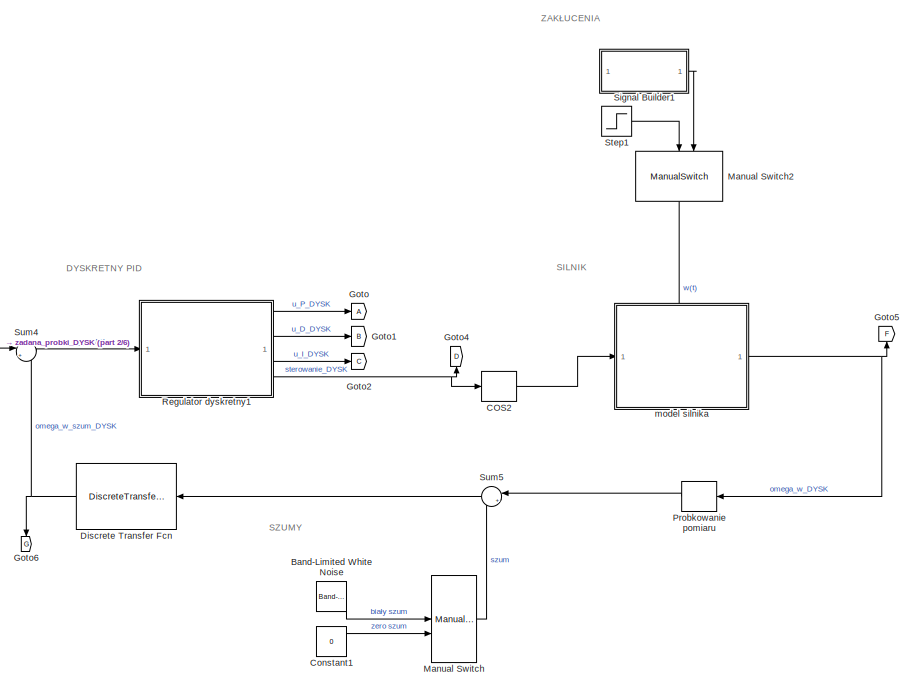
[diagram: root canvas - part 1/6, top center region]
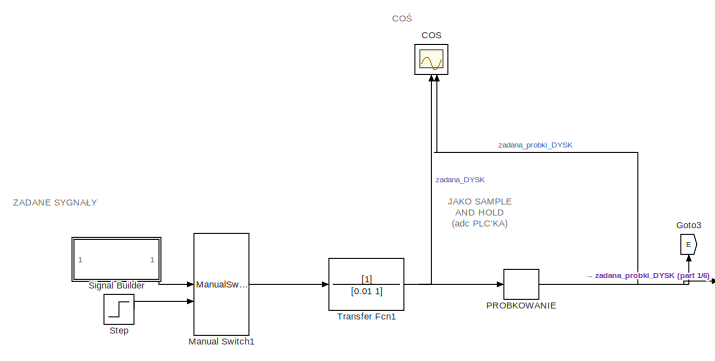
[diagram: root canvas - part 2/6, top left region]
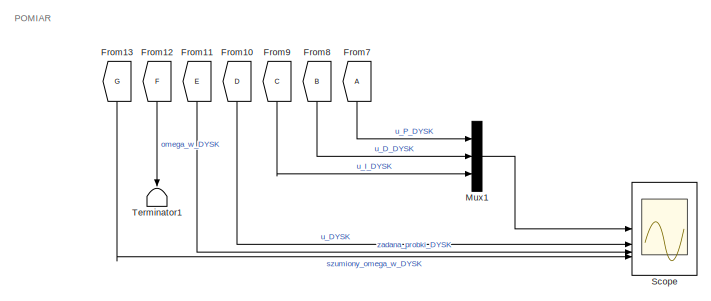
[diagram: root canvas - part 3/6, middle right region]
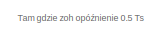
[diagram: root canvas - part 4/6, middle left region]
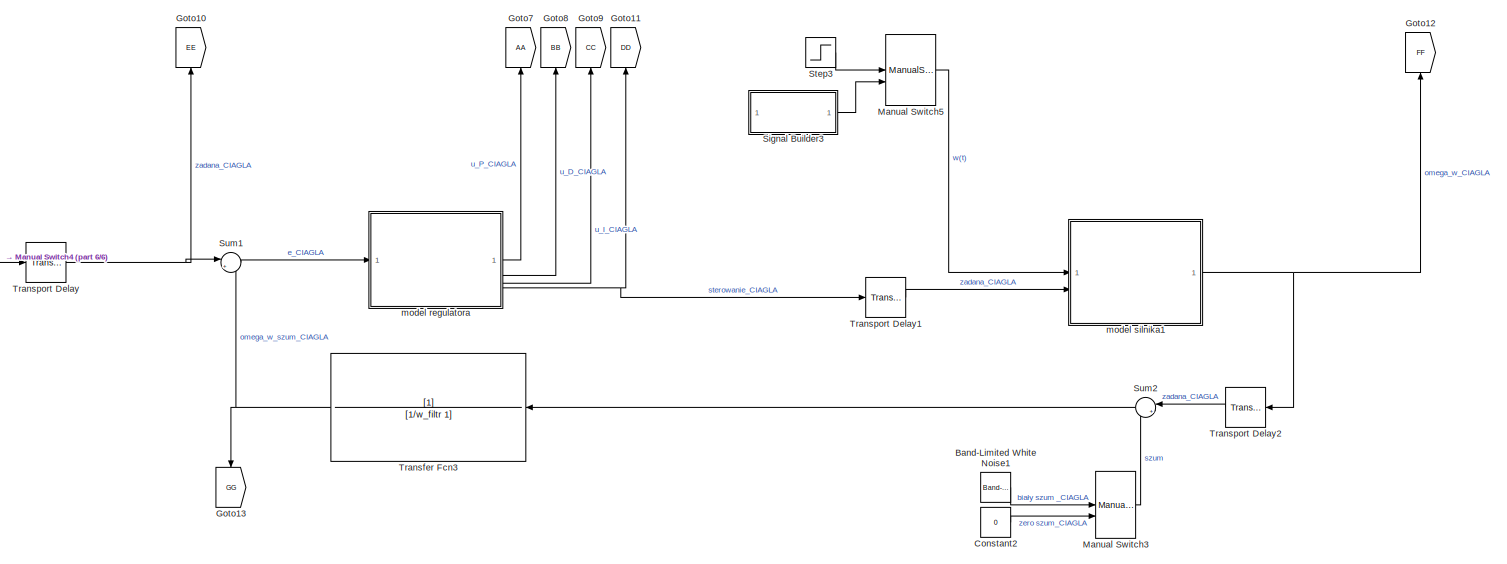
[diagram: root canvas - part 5/6, bottom center region]
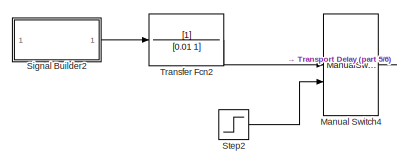
[diagram: root canvas - part 6/6, bottom left region]
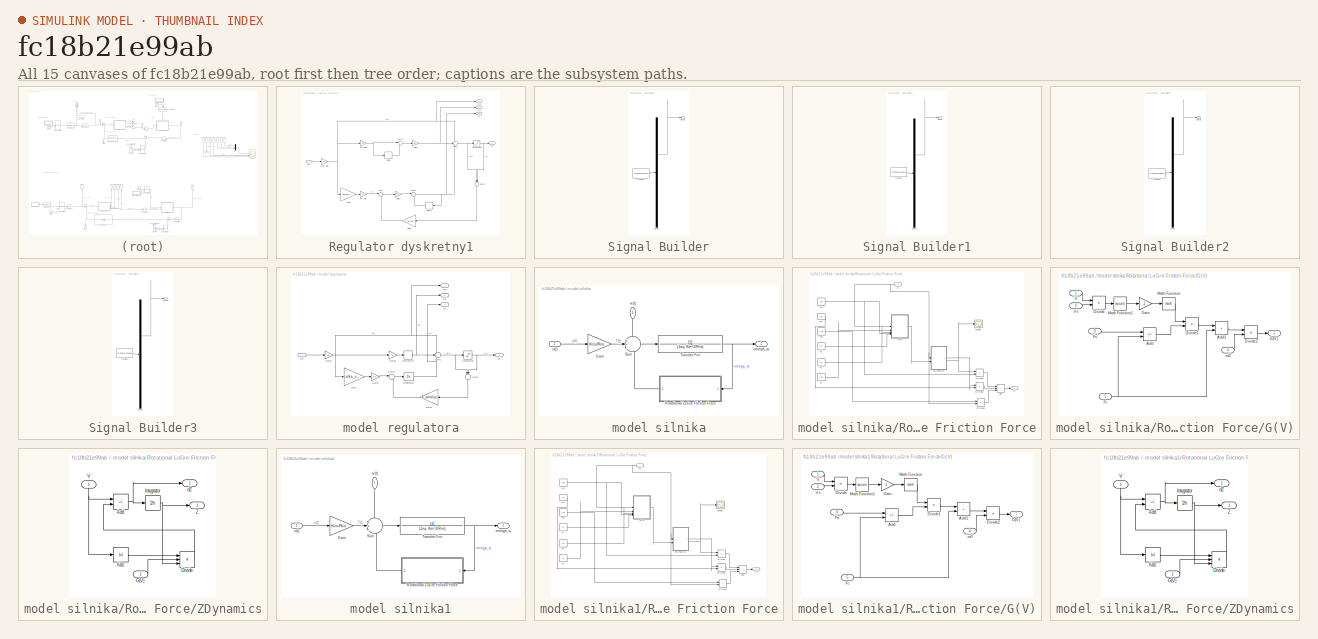
[diagram: thumbnail index - all 15 canvases of the model, root first then tree order]
MODEL slx_fc18b21e99ab
KIND model
CONFIG AbsTol = auto
CONFIG EnableMultiTasking = off
CONFIG FixedStep = auto
CONFIG MaxStep = auto
CONFIG MinStep = auto
CONFIG RelTol = 1e-3
CONFIG SampleTimeConstraint = Unconstrained
CONFIG SolverName = ode45
CONFIG StartTime = 0.0
CONFIG StopTime = 5
BLOCK [Reference] Band-Limited White Noise  REF=simulink/Sources/Band-Limited
White Noise
  SourceBlock = simulink/Sources/Band-Limited\nWhite Noise
  SourceType = Band-Limited White Noise.
BLOCK [Reference] Band-Limited White Noise1  REF=simulink/Sources/Band-Limited
White Noise
  SourceBlock = simulink/Sources/Band-Limited\nWhite Noise
  SourceType = Band-Limited White Noise.
BLOCK [Scope] COS 
  Floating = off
  NameLocation = right
  NumInputPorts = 2
  ScopeSpecificationString = Simulink.scopes.TimeScopeBlockCfg('CurrentConfiguration', extmgr.ConfigurationSet(extmgr.Configuration('Core','General UI',true),extmgr.Configuration('Core','Source UI',true),extmgr.Configuration('Sources','WiredSimulink',true,'DataLoggingVariableName','ScopeData1'),extmgr.Configuration('Visuals','Time Domain',true,'SerializedDisplays',{struct('MinYLimReal','-181.25','MaxYLimReal','131.25','YLabel...<+2063ch>
BLOCK [ZeroOrderHold] COS2
  NameLocation = top
  SampleTime = Ts
BLOCK [Constant] Constant1
  Value = 0
BLOCK [Constant] Constant2
  Value = 0
BLOCK [DiscreteTransferFcn] Discrete Transfer Fcn
  Denominator = [den_f_e(1) den_f_e(2)]
  InputPortMap = u0
  NameLocation = top
  Numerator = [num_f_e(1), num_f_e(2)]
  SampleTime = Ts
BLOCK [From] From10
  GotoTag = D
  NameLocation = left
BLOCK [From] From11
  GotoTag = E
  NameLocation = left
BLOCK [From] From12
  GotoTag = F
  NameLocation = left
BLOCK [From] From13
  GotoTag = G
  NameLocation = left
BLOCK [From] From7
  NameLocation = left
BLOCK [From] From8
  GotoTag = B
  IconDisplay = Signal name
  NameLocation = left
BLOCK [From] From9
  GotoTag = C
  IconDisplay = Signal name
  NameLocation = left
BLOCK [Goto] Goto
BLOCK [Goto] Goto1
  GotoTag = B
BLOCK [Goto] Goto10
  GotoTag = EE
  NameLocation = right
BLOCK [Goto] Goto11
  GotoTag = DD
  NameLocation = right
BLOCK [Goto] Goto12
  GotoTag = FF
  NameLocation = right
BLOCK [Goto] Goto13
  GotoTag = GG
  NameLocation = left
BLOCK [Goto] Goto2
  GotoTag = C
BLOCK [Goto] Goto3
  GotoTag = E
  NameLocation = right
BLOCK [Goto] Goto4
  GotoTag = D
  NameLocation = right
BLOCK [Goto] Goto5
  GotoTag = F
  NameLocation = right
BLOCK [Goto] Goto6
  GotoTag = G
  NameLocation = left
BLOCK [Goto] Goto7
  GotoTag = AA
  NameLocation = right
BLOCK [Goto] Goto8
  GotoTag = BB
  NameLocation = right
BLOCK [Goto] Goto9
  GotoTag = CC
  NameLocation = right
BLOCK [ManualSwitch] Manual Switch
BLOCK [ManualSwitch] Manual Switch1
BLOCK [ManualSwitch] Manual Switch2
  NameLocation = left
BLOCK [ManualSwitch] Manual Switch3
BLOCK [ManualSwitch] Manual Switch4
BLOCK [ManualSwitch] Manual Switch5
BLOCK [Mux] Mux1
  DisplayOption = bar
  Inputs = 3
BLOCK [ZeroOrderHold] PROBKOWANIE
  NameLocation = top
  SampleTime = Ts
BLOCK [ZeroOrderHold] Probkowanie pomiaru
  NameLocation = top
  SampleTime = Ts
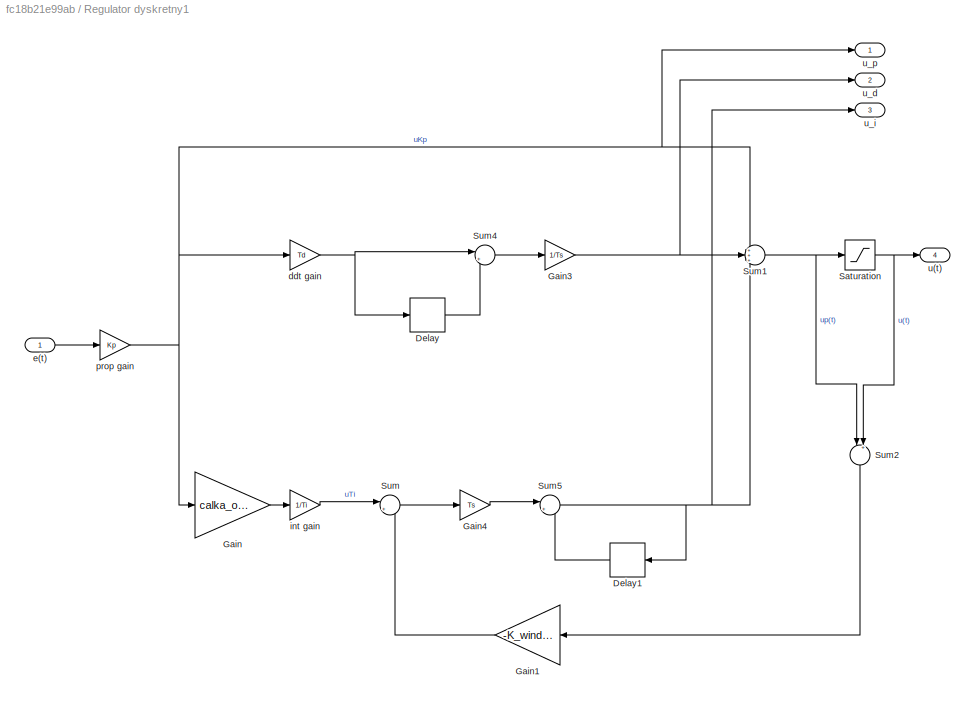
BLOCK [SubSystem] Regulator dyskretny1
BLOCK [Delay] Regulator dyskretny1/Delay
  DelayLength = 1
  InputPortMap = u0
  SampleTime = Ts
BLOCK [Delay] Regulator dyskretny1/Delay1
  DelayLength = 1
  InputPortMap = u0
  NameLocation = top
  SampleTime = Ts
BLOCK [Gain] Regulator dyskretny1/Gain
  Gain = calka_on_off
BLOCK [Gain] Regulator dyskretny1/Gain1
  Gain = -K_windup
  NameLocation = top
BLOCK [Gain] Regulator dyskretny1/Gain3
  Gain = 1/Ts
BLOCK [Gain] Regulator dyskretny1/Gain4
  Gain = Ts
BLOCK [Saturate] Regulator dyskretny1/Saturation
  LowerLimit = -10
  UpperLimit = 10
  ZeroCross = off
BLOCK [Sum] Regulator dyskretny1/Sum
  Inputs = |++
BLOCK [Sum] Regulator dyskretny1/Sum1
  Inputs = +++
BLOCK [Sum] Regulator dyskretny1/Sum2
  Inputs = |+-|
  NameLocation = left
BLOCK [Sum] Regulator dyskretny1/Sum4
  Inputs = |+-
BLOCK [Sum] Regulator dyskretny1/Sum5
  Inputs = |++
BLOCK [Gain] Regulator dyskretny1/ddt gain
  Gain = Td
BLOCK [Inport] Regulator dyskretny1/e(t)
BLOCK [Gain] Regulator dyskretny1/int gain
  Gain = 1/Ti
BLOCK [Gain] Regulator dyskretny1/prop gain
  Gain = Kp
BLOCK [Outport] Regulator dyskretny1/u(t)
  Port = 4
BLOCK [Outport] Regulator dyskretny1/u_d
  Port = 2
BLOCK [Outport] Regulator dyskretny1/u_i
  Port = 3
BLOCK [Outport] Regulator dyskretny1/u_p
BLOCK [Scope] Scope
  Floating = off
  NumInputPorts = 4
  ScopeSpecificationString = Simulink.scopes.TimeScopeBlockCfg('CurrentConfiguration', extmgr.ConfigurationSet(extmgr.Configuration('Core','General UI',true),extmgr.Configuration('Core','Source UI',true),extmgr.Configuration('Sources','WiredSimulink',true,'DataLoggingVariableName','ScopeData1'),extmgr.Configuration('Visuals','Time Domain',true,'PlotType','Stairs','SerializedDisplays',{struct('MinYLimReal','-8.39968','MaxYLimR...<+3555ch>
BLOCK [SubSystem] Signal Builder
  ClipboardFcn = sigbuilder_block('clipboard');
  CloseFcn = sigbuilder_block('close');
  ContinueFcn = sigbuilder_block('continue');
  CopyFcn = sigbuilder_block('copy');
  DeleteFcn = sigbuilder_block('delete');
  LoadFcn = sigbuilder_block('load');
  MaskHideContents = on
  ModelCloseFcn = sigbuilder_block('modelClose');
  NameChangeFcn = sigbuilder_block('namechange');
  OpenFcn = sigbuilder_block('open',[261 231 1018.5 399.75 ]);
  PauseFcn = sigbuilder_block('pause');
  PreSaveFcn = sigbuilder_block('preSave');
  StartFcn = sigbuilder_block('start');
  StopFcn = sigbuilder_block('stop');
  Tag = STV Subsys
BLOCK [Demux] Signal Builder/Demux
  DisplayOption = none
  Outputs = 1
  Tag = STV Demux
BLOCK [FromWorkspace] Signal Builder/FromWs
  Tag = STV FromWs
  VariableName = tuvar
BLOCK [Outport] Signal Builder/Signal 2
  Tag = STV Outport
BLOCK [SubSystem] Signal Builder1
  ClipboardFcn = sigbuilder_block('clipboard');
  CloseFcn = sigbuilder_block('close');
  ContinueFcn = sigbuilder_block('continue');
  CopyFcn = sigbuilder_block('copy');
  DeleteFcn = sigbuilder_block('delete');
  LoadFcn = sigbuilder_block('load');
  MaskHideContents = on
  ModelCloseFcn = sigbuilder_block('modelClose');
  NameChangeFcn = sigbuilder_block('namechange');
  OpenFcn = sigbuilder_block('open',[261 231 1018.5 399.75 ]);
  PauseFcn = sigbuilder_block('pause');
  PreSaveFcn = sigbuilder_block('preSave');
  StartFcn = sigbuilder_block('start');
  StopFcn = sigbuilder_block('stop');
  Tag = STV Subsys
BLOCK [Demux] Signal Builder1/Demux
  DisplayOption = none
  Outputs = 1
  Tag = STV Demux
BLOCK [FromWorkspace] Signal Builder1/FromWs
  Tag = STV FromWs
  VariableName = tuvar
BLOCK [Outport] Signal Builder1/Signal 1
  Tag = STV Outport
BLOCK [SubSystem] Signal Builder2
  ClipboardFcn = sigbuilder_block('clipboard');
  CloseFcn = sigbuilder_block('close');
  ContinueFcn = sigbuilder_block('continue');
  CopyFcn = sigbuilder_block('copy');
  DeleteFcn = sigbuilder_block('delete');
  LoadFcn = sigbuilder_block('load');
  MaskHideContents = on
  ModelCloseFcn = sigbuilder_block('modelClose');
  NameChangeFcn = sigbuilder_block('namechange');
  OpenFcn = sigbuilder_block('open',[261 231 1018.5 399.75 ]);
  PauseFcn = sigbuilder_block('pause');
  PreSaveFcn = sigbuilder_block('preSave');
  StartFcn = sigbuilder_block('start');
  StopFcn = sigbuilder_block('stop');
  Tag = STV Subsys
BLOCK [Demux] Signal Builder2/Demux
  DisplayOption = none
  Outputs = 1
  Tag = STV Demux
BLOCK [FromWorkspace] Signal Builder2/FromWs
  Tag = STV FromWs
  VariableName = tuvar
BLOCK [Outport] Signal Builder2/Signal 2
  Tag = STV Outport
BLOCK [SubSystem] Signal Builder3
  ClipboardFcn = sigbuilder_block('clipboard');
  CloseFcn = sigbuilder_block('close');
  ContinueFcn = sigbuilder_block('continue');
  CopyFcn = sigbuilder_block('copy');
  DeleteFcn = sigbuilder_block('delete');
  LoadFcn = sigbuilder_block('load');
  MaskHideContents = on
  ModelCloseFcn = sigbuilder_block('modelClose');
  NameChangeFcn = sigbuilder_block('namechange');
  OpenFcn = sigbuilder_block('open',[261 231 1018.5 399.75 ]);
  PauseFcn = sigbuilder_block('pause');
  PreSaveFcn = sigbuilder_block('preSave');
  StartFcn = sigbuilder_block('start');
  StopFcn = sigbuilder_block('stop');
  Tag = STV Subsys
BLOCK [Demux] Signal Builder3/Demux
  DisplayOption = none
  Outputs = 1
  Tag = STV Demux
BLOCK [FromWorkspace] Signal Builder3/FromWs
  Tag = STV FromWs
  VariableName = tuvar
BLOCK [Outport] Signal Builder3/Signal 1
  Tag = STV Outport
BLOCK [Step] Step
  SampleTime = 0
BLOCK [Step] Step1
  After = 0.03
  SampleTime = 0
  Time = 2
BLOCK [Step] Step2
  SampleTime = 0
BLOCK [Step] Step3
  After = 0.03
  SampleTime = 0
  Time = 2
BLOCK [Sum] Sum1
  Inputs = |+-
BLOCK [Sum] Sum2
  Inputs = |++
  NameLocation = top
BLOCK [Sum] Sum4
  Inputs = |+-
BLOCK [Sum] Sum5
  Inputs = |++
  NameLocation = top
BLOCK [Terminator] Terminator1
  NameLocation = left
BLOCK [TransferFcn] Transfer Fcn1
  Denominator = [0.01 1]
BLOCK [TransferFcn] Transfer Fcn2
  Denominator = [0.01 1]
BLOCK [TransferFcn] Transfer Fcn3
  Denominator = [1/w_filtr 1]
  NameLocation = top
BLOCK [TransportDelay] Transport Delay
  DelayTime = Ts/2
BLOCK [TransportDelay] Transport Delay1
  DelayTime = Ts/2
BLOCK [TransportDelay] Transport Delay2
  DelayTime = Ts/2
  NameLocation = top
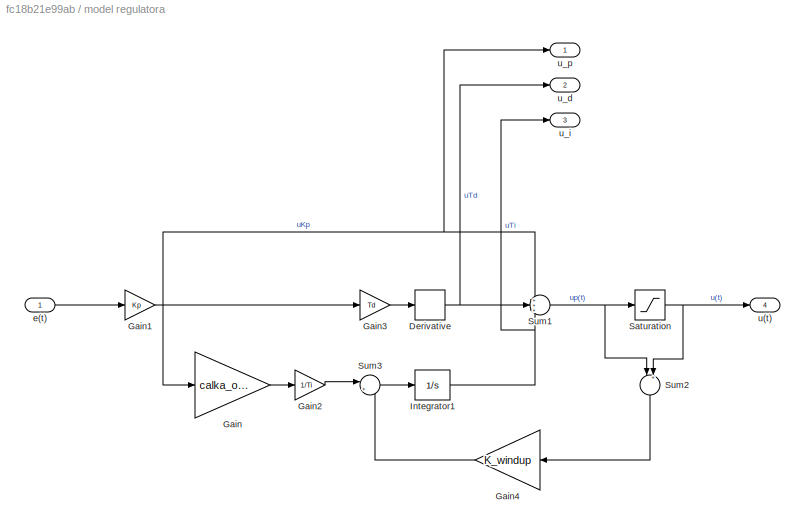
BLOCK [SubSystem] model regulatora
  NameLocation = top
BLOCK [Derivative] model regulatora/Derivative
  CoefficientInTFapproximation = 500
BLOCK [Gain] model regulatora/Gain
  Gain = calka_on_off
BLOCK [Gain] model regulatora/Gain1
  Gain = Kp
BLOCK [Gain] model regulatora/Gain2
  Gain = 1/Ti
BLOCK [Gain] model regulatora/Gain3
  Gain = Td
BLOCK [Gain] model regulatora/Gain4
  Gain = K_windup
  NameLocation = top
BLOCK [Integrator] model regulatora/Integrator1
BLOCK [Saturate] model regulatora/Saturation
  LowerLimit = -10
  UpperLimit = 10
  ZeroCross = off
BLOCK [Sum] model regulatora/Sum1
  Inputs = +++
BLOCK [Sum] model regulatora/Sum2
  Inputs = |+-|
  NameLocation = left
BLOCK [Sum] model regulatora/Sum3
  Inputs = |+-
BLOCK [Inport] model regulatora/e(t)
BLOCK [Outport] model regulatora/u(t)
  Port = 4
BLOCK [Outport] model regulatora/u_d
  Port = 2
BLOCK [Outport] model regulatora/u_i
  Port = 3
BLOCK [Outport] model regulatora/u_p
BLOCK [SubSystem] model silnika
  PortSchema = {"entries":[{"content":{"sides":[{"content":{"connectorIds":["In1"]},"type":"ConnectorPlacement.EquallySpacedRectSide","uuid":"98491aef-0591-4405-8c9c-40e364f6fd31"},{"content":{"connectorIds":["Out1"],"side":"RIGHT"},"type":"ConnectorPlacement.EquallySpacedRectSide","uuid":"a1d3aa00-38e6-4d5e-ba9e-ca8054307f42"},{"content":{"connectorIds":["In2"],"side":"TOP"},"type":"ConnectorPlacement.EquallySp...<+389ch>
BLOCK [Gain] model silnika/Gain
  Gain = Km/Rm
BLOCK [SubSystem] model silnika/Rotational LuGre Friction Force
  NameLocation = top
  TreatAsAtomicUnit = on
BLOCK [Sum] model silnika/Rotational LuGre Friction Force/Add
  IconShape = rectangular
  Inputs = +++
BLOCK [Product] model silnika/Rotational LuGre Friction Force/Divide
  Inputs = **
BLOCK [Product] model silnika/Rotational LuGre Friction Force/Divide1
  Inputs = **
BLOCK [Product] model silnika/Rotational LuGre Friction Force/Divide2
  Inputs = **
BLOCK [Constant] model silnika/Rotational LuGre Friction Force/Fc
  Value = Fc
BLOCK [Constant] model silnika/Rotational LuGre Friction Force/Fs
  Value = Fs
BLOCK [SubSystem] model silnika/Rotational LuGre Friction Force/G(V)
BLOCK [Sum] model silnika/Rotational LuGre Friction Force/G(V)/Add
  IconShape = rectangular
  Inputs = +-
BLOCK [Sum] model silnika/Rotational LuGre Friction Force/G(V)/Add1
  IconShape = rectangular
BLOCK [Product] model silnika/Rotational LuGre Friction Force/G(V)/Divide
  Inputs = */
BLOCK [Product] model silnika/Rotational LuGre Friction Force/G(V)/Divide1
  Inputs = **
BLOCK [Product] model silnika/Rotational LuGre Friction Force/G(V)/Divide2
  Inputs = */
BLOCK [Inport] model silnika/Rotational LuGre Friction Force/G(V)/Fc
  Port = 5
BLOCK [Inport] model silnika/Rotational LuGre Friction Force/G(V)/Fs
  Port = 3
BLOCK [Outport] model silnika/Rotational LuGre Friction Force/G(V)/G(V)
BLOCK [Gain] model silnika/Rotational LuGre Friction Force/G(V)/Gain
  Gain = -1
BLOCK [Math] model silnika/Rotational LuGre Friction Force/G(V)/Math Function
  SignedPower = on
BLOCK [Math] model silnika/Rotational LuGre Friction Force/G(V)/Math Function1
  Operator = square
  SignedPower = on
BLOCK [Inport] model silnika/Rotational LuGre Friction Force/G(V)/V
BLOCK [Inport] model silnika/Rotational LuGre Friction Force/G(V)/Vs
  Port = 2
BLOCK [Inport] model silnika/Rotational LuGre Friction Force/G(V)/ro0
  Port = 4
BLOCK [Scope] model silnika/Rotational LuGre Friction Force/Scope1
  Floating = off
  NumInputPorts = 1
  ScopeSpecificationString = Simulink.scopes.TimeScopeBlockCfg('CurrentConfiguration', extmgr.ConfigurationSet(extmgr.Configuration('Core','General UI',true),extmgr.Configuration('Core','Source UI',true),extmgr.Configuration('Sources','WiredSimulink',true,'DataLoggingVariableName','ScopeData3','DataLoggingSaveFormat','StructureWithTime','DataLoggingDecimation','1','DataLoggingDecimateData',true),extmgr.Configuration('Visuals'...<+1592ch>
BLOCK [Outport] model silnika/Rotational LuGre Friction Force/T
BLOCK [Constant] model silnika/Rotational LuGre Friction Force/Vs
  Value = Vs
BLOCK [SubSystem] model silnika/Rotational LuGre Friction Force/ZDynamics
BLOCK [Abs] model silnika/Rotational LuGre Friction Force/ZDynamics/Abs
  SaturateOnIntegerOverflow = off
BLOCK [Sum] model silnika/Rotational LuGre Friction Force/ZDynamics/Add
  IconShape = rectangular
  Inputs = +-
BLOCK [Product] model silnika/Rotational LuGre Friction Force/ZDynamics/Divide
  Inputs = */*
BLOCK [Inport] model silnika/Rotational LuGre Friction Force/ZDynamics/G(V)
  Port = 2
BLOCK [Integrator] model silnika/Rotational LuGre Friction Force/ZDynamics/Integrator
BLOCK [Inport] model silnika/Rotational LuGre Friction Force/ZDynamics/V
  NameLocation = right
BLOCK [Outport] model silnika/Rotational LuGre Friction Force/ZDynamics/Z
  Port = 2
BLOCK [Outport] model silnika/Rotational LuGre Friction Force/ZDynamics/dZ
BLOCK [Constant] model silnika/Rotational LuGre Friction Force/ro0
  Value = ro0
BLOCK [Constant] model silnika/Rotational LuGre Friction Force/ro1
  Value = ro1
BLOCK [Constant] model silnika/Rotational LuGre Friction Force/ro2
  Value = ro2
BLOCK [Inport] model silnika/Rotational LuGre Friction Force/w
BLOCK [Sum] model silnika/Sum
  Inputs = ++-
BLOCK [TransferFcn] model silnika/Transfer Fcn
  Denominator = [Jeq, Km^2/Rm]
BLOCK [Outport] model silnika/omega_w
BLOCK [Inport] model silnika/u(t)
BLOCK [Inport] model silnika/w(t)
  NameLocation = left
  Port = 2
BLOCK [SubSystem] model silnika1
  NameLocation = top
BLOCK [Gain] model silnika1/Gain
  Gain = Km/Rm
BLOCK [SubSystem] model silnika1/Rotational LuGre Friction Force
  NameLocation = top
  TreatAsAtomicUnit = on
BLOCK [Sum] model silnika1/Rotational LuGre Friction Force/Add
  IconShape = rectangular
  Inputs = +++
BLOCK [Product] model silnika1/Rotational LuGre Friction Force/Divide
  Inputs = **
BLOCK [Product] model silnika1/Rotational LuGre Friction Force/Divide1
  Inputs = **
BLOCK [Product] model silnika1/Rotational LuGre Friction Force/Divide2
  Inputs = **
BLOCK [Constant] model silnika1/Rotational LuGre Friction Force/Fc
  Value = Fc
BLOCK [Constant] model silnika1/Rotational LuGre Friction Force/Fs
  Value = Fs
BLOCK [SubSystem] model silnika1/Rotational LuGre Friction Force/G(V)
BLOCK [Sum] model silnika1/Rotational LuGre Friction Force/G(V)/Add
  IconShape = rectangular
  Inputs = +-
BLOCK [Sum] model silnika1/Rotational LuGre Friction Force/G(V)/Add1
  IconShape = rectangular
BLOCK [Product] model silnika1/Rotational LuGre Friction Force/G(V)/Divide
  Inputs = */
BLOCK [Product] model silnika1/Rotational LuGre Friction Force/G(V)/Divide1
  Inputs = **
BLOCK [Product] model silnika1/Rotational LuGre Friction Force/G(V)/Divide2
  Inputs = */
BLOCK [Inport] model silnika1/Rotational LuGre Friction Force/G(V)/Fc
  Port = 5
BLOCK [Inport] model silnika1/Rotational LuGre Friction Force/G(V)/Fs
  Port = 3
BLOCK [Outport] model silnika1/Rotational LuGre Friction Force/G(V)/G(V)
BLOCK [Gain] model silnika1/Rotational LuGre Friction Force/G(V)/Gain
  Gain = -1
BLOCK [Math] model silnika1/Rotational LuGre Friction Force/G(V)/Math Function
  SignedPower = on
BLOCK [Math] model silnika1/Rotational LuGre Friction Force/G(V)/Math Function1
  Operator = square
  SignedPower = on
BLOCK [Inport] model silnika1/Rotational LuGre Friction Force/G(V)/V
BLOCK [Inport] model silnika1/Rotational LuGre Friction Force/G(V)/Vs
  Port = 2
BLOCK [Inport] model silnika1/Rotational LuGre Friction Force/G(V)/ro0
  Port = 4
BLOCK [Scope] model silnika1/Rotational LuGre Friction Force/Scope1
  Floating = off
  NumInputPorts = 1
  ScopeSpecificationString = Simulink.scopes.TimeScopeBlockCfg('CurrentConfiguration', extmgr.ConfigurationSet(extmgr.Configuration('Core','General UI',true),extmgr.Configuration('Core','Source UI',true),extmgr.Configuration('Sources','WiredSimulink',true,'DataLoggingVariableName','ScopeData3','DataLoggingSaveFormat','StructureWithTime','DataLoggingDecimation','1','DataLoggingDecimateData',true),extmgr.Configuration('Visuals'...<+1592ch>
BLOCK [Outport] model silnika1/Rotational LuGre Friction Force/T
BLOCK [Constant] model silnika1/Rotational LuGre Friction Force/Vs
  Value = Vs
BLOCK [SubSystem] model silnika1/Rotational LuGre Friction Force/ZDynamics
BLOCK [Abs] model silnika1/Rotational LuGre Friction Force/ZDynamics/Abs
  SaturateOnIntegerOverflow = off
BLOCK [Sum] model silnika1/Rotational LuGre Friction Force/ZDynamics/Add
  IconShape = rectangular
  Inputs = +-
BLOCK [Product] model silnika1/Rotational LuGre Friction Force/ZDynamics/Divide
  Inputs = */*
BLOCK [Inport] model silnika1/Rotational LuGre Friction Force/ZDynamics/G(V)
  Port = 2
BLOCK [Integrator] model silnika1/Rotational LuGre Friction Force/ZDynamics/Integrator
BLOCK [Inport] model silnika1/Rotational LuGre Friction Force/ZDynamics/V
  NameLocation = right
BLOCK [Outport] model silnika1/Rotational LuGre Friction Force/ZDynamics/Z
  Port = 2
BLOCK [Outport] model silnika1/Rotational LuGre Friction Force/ZDynamics/dZ
BLOCK [Constant] model silnika1/Rotational LuGre Friction Force/ro0
  Value = ro0
BLOCK [Constant] model silnika1/Rotational LuGre Friction Force/ro1
  Value = ro1
BLOCK [Constant] model silnika1/Rotational LuGre Friction Force/ro2
  Value = ro2
BLOCK [Inport] model silnika1/Rotational LuGre Friction Force/w
BLOCK [Sum] model silnika1/Sum
  Inputs = ++-
BLOCK [TransferFcn] model silnika1/Transfer Fcn
  Denominator = [Jeq, Km^2/Rm]
BLOCK [Outport] model silnika1/omega_w
BLOCK [Inport] model silnika1/u(t)
  Port = 2
BLOCK [Inport] model silnika1/w(t)
  NameLocation = left
ANNOTATION (root): Tam gdzie zoh opóźnienie 0.5 Ts
ANNOTATION (root): COŚ
ANNOTATION (root): DYSKRETNY PID
ANNOTATION (root): JAKO SAMPLE AND HOLD (adc PLC'KA)
ANNOTATION (root): POMIAR
ANNOTATION (root): SILNIK
ANNOTATION (root): SZUMY
ANNOTATION (root): ZADANE SYGNAŁY
ANNOTATION (root): ZAKŁUCENIA
LINE Band-Limited White Noise1:1 -> Manual Switch3:1
LINE Band-Limited White Noise:1 -> Manual Switch:1
LINE COS2:1 -> model silnika:1
LINE Constant1:1 -> Manual Switch:2
LINE Constant2:1 -> Manual Switch3:2
NET Discrete Transfer Fcn:1 -> Goto6:1, Sum4:2
LINE From10:1 -> Scope:2
LINE From11:1 -> Scope:3
LINE From12:1 -> Terminator1:1
LINE From13:1 -> Scope:4
LINE From7:1 -> Mux1:1
LINE From8:1 -> Mux1:2
LINE From9:1 -> Mux1:3
LINE Manual Switch1:1 -> Transfer Fcn1:1
LINE Manual Switch2:1 -> model silnika:2
LINE Manual Switch3:1 -> Sum2:2
LINE Manual Switch4:1 -> Transport Delay:1
LINE Manual Switch5:1 -> model silnika1:1
LINE Manual Switch:1 -> Sum5:2
LINE Mux1:1 -> Scope:1
NET PROBKOWANIE:1 -> COS :2, Goto3:1, Sum4:1
LINE Probkowanie pomiaru:1 -> Sum5:1
LINE Regulator dyskretny1/Delay1:1 -> Regulator dyskretny1/Sum5:2
LINE Regulator dyskretny1/Delay:1 -> Regulator dyskretny1/Sum4:2
LINE Regulator dyskretny1/Gain1:1 -> Regulator dyskretny1/Sum:2
NET Regulator dyskretny1/Gain3:1 -> Regulator dyskretny1/Sum1:2, Regulator dyskretny1/u_d:1
LINE Regulator dyskretny1/Gain4:1 -> Regulator dyskretny1/Sum5:1
LINE Regulator dyskretny1/Gain:1 -> Regulator dyskretny1/int gain:1
NET Regulator dyskretny1/Saturation:1 -> Regulator dyskretny1/Sum2:2, Regulator dyskretny1/u(t):1
NET Regulator dyskretny1/Sum1:1 -> Regulator dyskretny1/Saturation:1, Regulator dyskretny1/Sum2:1
LINE Regulator dyskretny1/Sum2:1 -> Regulator dyskretny1/Gain1:1
LINE Regulator dyskretny1/Sum4:1 -> Regulator dyskretny1/Gain3:1
NET Regulator dyskretny1/Sum5:1 -> Regulator dyskretny1/Delay1:1, Regulator dyskretny1/Sum1:3, Regulator dyskretny1/u_i:1
LINE Regulator dyskretny1/Sum:1 -> Regulator dyskretny1/Gain4:1
NET Regulator dyskretny1/ddt gain:1 -> Regulator dyskretny1/Delay:1, Regulator dyskretny1/Sum4:1
LINE Regulator dyskretny1/e(t):1 -> Regulator dyskretny1/prop gain:1
LINE Regulator dyskretny1/int gain:1 -> Regulator dyskretny1/Sum:1
NET Regulator dyskretny1/prop gain:1 -> Regulator dyskretny1/Gain:1, Regulator dyskretny1/Sum1:1, Regulator dyskretny1/ddt gain:1, Regulator dyskretny1/u_p:1
LINE Regulator dyskretny1:1 -> Goto:1
LINE Regulator dyskretny1:2 -> Goto1:1
LINE Regulator dyskretny1:3 -> Goto2:1
NET Regulator dyskretny1:4 -> COS2:1, Goto4:1
LINE Signal Builder1:1 -> Manual Switch2:2
LINE Signal Builder2:1 -> Transfer Fcn2:1
LINE Signal Builder3:1 -> Manual Switch5:2
LINE Signal Builder:1 -> Manual Switch1:1
LINE Step1:1 -> Manual Switch2:1
LINE Step2:1 -> Manual Switch4:2
LINE Step3:1 -> Manual Switch5:1
LINE Step:1 -> Manual Switch1:2
LINE Sum1:1 -> model regulatora:1
LINE Sum2:1 -> Transfer Fcn3:1
LINE Sum4:1 -> Regulator dyskretny1:1
LINE Sum5:1 -> Discrete Transfer Fcn:1
NET Transfer Fcn1:1 -> COS :1, PROBKOWANIE:1
LINE Transfer Fcn2:1 -> Manual Switch4:1
NET Transfer Fcn3:1 -> Goto13:1, Sum1:2
LINE Transport Delay1:1 -> model silnika1:2
LINE Transport Delay2:1 -> Sum2:1
NET Transport Delay:1 -> Goto10:1, Sum1:1
NET model regulatora/Derivative:1 -> model regulatora/Sum1:2, model regulatora/u_d:1
NET model regulatora/Gain1:1 -> model regulatora/Gain3:1, model regulatora/Gain:1, model regulatora/Sum1:1, model regulatora/u_p:1
LINE model regulatora/Gain2:1 -> model regulatora/Sum3:1
LINE model regulatora/Gain3:1 -> model regulatora/Derivative:1
LINE model regulatora/Gain4:1 -> model regulatora/Sum3:2
LINE model regulatora/Gain:1 -> model regulatora/Gain2:1
NET model regulatora/Integrator1:1 -> model regulatora/Sum1:3, model regulatora/u_i:1
NET model regulatora/Saturation:1 -> model regulatora/Sum2:2, model regulatora/u(t):1
NET model regulatora/Sum1:1 -> model regulatora/Saturation:1, model regulatora/Sum2:1
LINE model regulatora/Sum2:1 -> model regulatora/Gain4:1
LINE model regulatora/Sum3:1 -> model regulatora/Integrator1:1
LINE model regulatora/e(t):1 -> model regulatora/Gain1:1
LINE model regulatora:1 -> Goto7:1
LINE model regulatora:2 -> Goto8:1
LINE model regulatora:3 -> Goto9:1
NET model regulatora:4 -> Goto11:1, Transport Delay1:1
LINE model silnika/Gain:1 -> model silnika/Sum:2
LINE model silnika/Rotational LuGre Friction Force/Add:1 -> model silnika/Rotational LuGre Friction Force/T:1
LINE model silnika/Rotational LuGre Friction Force/Divide1:1 -> model silnika/Rotational LuGre Friction Force/Add:2
LINE model silnika/Rotational LuGre Friction Force/Divide2:1 -> model silnika/Rotational LuGre Friction Force/Add:3
LINE model silnika/Rotational LuGre Friction Force/Divide:1 -> model silnika/Rotational LuGre Friction Force/Add:1
LINE model silnika/Rotational LuGre Friction Force/Fc:1 -> model silnika/Rotational LuGre Friction Force/G(V):5
LINE model silnika/Rotational LuGre Friction Force/Fs:1 -> model silnika/Rotational LuGre Friction Force/G(V):3
LINE model silnika/Rotational LuGre Friction Force/G(V)/Add1:1 -> model silnika/Rotational LuGre Friction Force/G(V)/Divide2:1
LINE model silnika/Rotational LuGre Friction Force/G(V)/Add:1 -> model silnika/Rotational LuGre Friction Force/G(V)/Divide1:2
LINE model silnika/Rotational LuGre Friction Force/G(V)/Divide1:1 -> model silnika/Rotational LuGre Friction Force/G(V)/Add1:1
LINE model silnika/Rotational LuGre Friction Force/G(V)/Divide2:1 -> model silnika/Rotational LuGre Friction Force/G(V)/G(V):1
LINE model silnika/Rotational LuGre Friction Force/G(V)/Divide:1 -> model silnika/Rotational LuGre Friction Force/G(V)/Math Function1:1
NET model silnika/Rotational LuGre Friction Force/G(V)/Fc:1 -> model silnika/Rotational LuGre Friction Force/G(V)/Add1:2, model silnika/Rotational LuGre Friction Force/G(V)/Add:2
LINE model silnika/Rotational LuGre Friction Force/G(V)/Fs:1 -> model silnika/Rotational LuGre Friction Force/G(V)/Add:1
LINE model silnika/Rotational LuGre Friction Force/G(V)/Gain:1 -> model silnika/Rotational LuGre Friction Force/G(V)/Math Function:1
LINE model silnika/Rotational LuGre Friction Force/G(V)/Math Function1:1 -> model silnika/Rotational LuGre Friction Force/G(V)/Gain:1
LINE model silnika/Rotational LuGre Friction Force/G(V)/Math Function:1 -> model silnika/Rotational LuGre Friction Force/G(V)/Divide1:1
LINE model silnika/Rotational LuGre Friction Force/G(V)/V:1 -> model silnika/Rotational LuGre Friction Force/G(V)/Divide:1
LINE model silnika/Rotational LuGre Friction Force/G(V)/Vs:1 -> model silnika/Rotational LuGre Friction Force/G(V)/Divide:2
LINE model silnika/Rotational LuGre Friction Force/G(V)/ro0:1 -> model silnika/Rotational LuGre Friction Force/G(V)/Divide2:2
LINE model silnika/Rotational LuGre Friction Force/G(V):1 -> model silnika/Rotational LuGre Friction Force/ZDynamics:2
LINE model silnika/Rotational LuGre Friction Force/Vs:1 -> model silnika/Rotational LuGre Friction Force/G(V):2
LINE model silnika/Rotational LuGre Friction Force/ZDynamics/Abs:1 -> model silnika/Rotational LuGre Friction Force/ZDynamics/Divide:1
NET model silnika/Rotational LuGre Friction Force/ZDynamics/Add:1 -> model silnika/Rotational LuGre Friction Force/ZDynamics/Integrator:1, model silnika/Rotational LuGre Friction Force/ZDynamics/dZ:1
LINE model silnika/Rotational LuGre Friction Force/ZDynamics/Divide:1 -> model silnika/Rotational LuGre Friction Force/ZDynamics/Add:2
LINE model silnika/Rotational LuGre Friction Force/ZDynamics/G(V):1 -> model silnika/Rotational LuGre Friction Force/ZDynamics/Divide:2
NET model silnika/Rotational LuGre Friction Force/ZDynamics/Integrator:1 -> model silnika/Rotational LuGre Friction Force/ZDynamics/Divide:3, model silnika/Rotational LuGre Friction Force/ZDynamics/Z:1
NET model silnika/Rotational LuGre Friction Force/ZDynamics/V:1 -> model silnika/Rotational LuGre Friction Force/ZDynamics/Abs:1, model silnika/Rotational LuGre Friction Force/ZDynamics/Add:1
LINE model silnika/Rotational LuGre Friction Force/ZDynamics:1 -> model silnika/Rotational LuGre Friction Force/Divide1:1
NET model silnika/Rotational LuGre Friction Force/ZDynamics:2 -> model silnika/Rotational LuGre Friction Force/Divide:1, model silnika/Rotational LuGre Friction Force/Scope1:1
NET model silnika/Rotational LuGre Friction Force/ro0:1 -> model silnika/Rotational LuGre Friction Force/Divide:2, model silnika/Rotational LuGre Friction Force/G(V):4
LINE model silnika/Rotational LuGre Friction Force/ro1:1 -> model silnika/Rotational LuGre Friction Force/Divide1:2
LINE model silnika/Rotational LuGre Friction Force/ro2:1 -> model silnika/Rotational LuGre Friction Force/Divide2:1
NET model silnika/Rotational LuGre Friction Force/w:1 -> model silnika/Rotational LuGre Friction Force/Divide2:2, model silnika/Rotational LuGre Friction Force/G(V):1, model silnika/Rotational LuGre Friction Force/ZDynamics:1
LINE model silnika/Rotational LuGre Friction Force:1 -> model silnika/Sum:3
LINE model silnika/Sum:1 -> model silnika/Transfer Fcn:1
NET model silnika/Transfer Fcn:1 -> model silnika/Rotational LuGre Friction Force:1, model silnika/omega_w:1
LINE model silnika/u(t):1 -> model silnika/Gain:1
LINE model silnika/w(t):1 -> model silnika/Sum:1
LINE model silnika1/Gain:1 -> model silnika1/Sum:2
LINE model silnika1/Rotational LuGre Friction Force/Add:1 -> model silnika1/Rotational LuGre Friction Force/T:1
LINE model silnika1/Rotational LuGre Friction Force/Divide1:1 -> model silnika1/Rotational LuGre Friction Force/Add:2
LINE model silnika1/Rotational LuGre Friction Force/Divide2:1 -> model silnika1/Rotational LuGre Friction Force/Add:3
LINE model silnika1/Rotational LuGre Friction Force/Divide:1 -> model silnika1/Rotational LuGre Friction Force/Add:1
LINE model silnika1/Rotational LuGre Friction Force/Fc:1 -> model silnika1/Rotational LuGre Friction Force/G(V):5
LINE model silnika1/Rotational LuGre Friction Force/Fs:1 -> model silnika1/Rotational LuGre Friction Force/G(V):3
LINE model silnika1/Rotational LuGre Friction Force/G(V)/Add1:1 -> model silnika1/Rotational LuGre Friction Force/G(V)/Divide2:1
LINE model silnika1/Rotational LuGre Friction Force/G(V)/Add:1 -> model silnika1/Rotational LuGre Friction Force/G(V)/Divide1:2
LINE model silnika1/Rotational LuGre Friction Force/G(V)/Divide1:1 -> model silnika1/Rotational LuGre Friction Force/G(V)/Add1:1
LINE model silnika1/Rotational LuGre Friction Force/G(V)/Divide2:1 -> model silnika1/Rotational LuGre Friction Force/G(V)/G(V):1
LINE model silnika1/Rotational LuGre Friction Force/G(V)/Divide:1 -> model silnika1/Rotational LuGre Friction Force/G(V)/Math Function1:1
NET model silnika1/Rotational LuGre Friction Force/G(V)/Fc:1 -> model silnika1/Rotational LuGre Friction Force/G(V)/Add1:2, model silnika1/Rotational LuGre Friction Force/G(V)/Add:2
LINE model silnika1/Rotational LuGre Friction Force/G(V)/Fs:1 -> model silnika1/Rotational LuGre Friction Force/G(V)/Add:1
LINE model silnika1/Rotational LuGre Friction Force/G(V)/Gain:1 -> model silnika1/Rotational LuGre Friction Force/G(V)/Math Function:1
LINE model silnika1/Rotational LuGre Friction Force/G(V)/Math Function1:1 -> model silnika1/Rotational LuGre Friction Force/G(V)/Gain:1
LINE model silnika1/Rotational LuGre Friction Force/G(V)/Math Function:1 -> model silnika1/Rotational LuGre Friction Force/G(V)/Divide1:1
LINE model silnika1/Rotational LuGre Friction Force/G(V)/V:1 -> model silnika1/Rotational LuGre Friction Force/G(V)/Divide:1
LINE model silnika1/Rotational LuGre Friction Force/G(V)/Vs:1 -> model silnika1/Rotational LuGre Friction Force/G(V)/Divide:2
LINE model silnika1/Rotational LuGre Friction Force/G(V)/ro0:1 -> model silnika1/Rotational LuGre Friction Force/G(V)/Divide2:2
LINE model silnika1/Rotational LuGre Friction Force/G(V):1 -> model silnika1/Rotational LuGre Friction Force/ZDynamics:2
LINE model silnika1/Rotational LuGre Friction Force/Vs:1 -> model silnika1/Rotational LuGre Friction Force/G(V):2
LINE model silnika1/Rotational LuGre Friction Force/ZDynamics/Abs:1 -> model silnika1/Rotational LuGre Friction Force/ZDynamics/Divide:1
NET model silnika1/Rotational LuGre Friction Force/ZDynamics/Add:1 -> model silnika1/Rotational LuGre Friction Force/ZDynamics/Integrator:1, model silnika1/Rotational LuGre Friction Force/ZDynamics/dZ:1
LINE model silnika1/Rotational LuGre Friction Force/ZDynamics/Divide:1 -> model silnika1/Rotational LuGre Friction Force/ZDynamics/Add:2
LINE model silnika1/Rotational LuGre Friction Force/ZDynamics/G(V):1 -> model silnika1/Rotational LuGre Friction Force/ZDynamics/Divide:2
NET model silnika1/Rotational LuGre Friction Force/ZDynamics/Integrator:1 -> model silnika1/Rotational LuGre Friction Force/ZDynamics/Divide:3, model silnika1/Rotational LuGre Friction Force/ZDynamics/Z:1
NET model silnika1/Rotational LuGre Friction Force/ZDynamics/V:1 -> model silnika1/Rotational LuGre Friction Force/ZDynamics/Abs:1, model silnika1/Rotational LuGre Friction Force/ZDynamics/Add:1
LINE model silnika1/Rotational LuGre Friction Force/ZDynamics:1 -> model silnika1/Rotational LuGre Friction Force/Divide1:1
NET model silnika1/Rotational LuGre Friction Force/ZDynamics:2 -> model silnika1/Rotational LuGre Friction Force/Divide:1, model silnika1/Rotational LuGre Friction Force/Scope1:1
NET model silnika1/Rotational LuGre Friction Force/ro0:1 -> model silnika1/Rotational LuGre Friction Force/Divide:2, model silnika1/Rotational LuGre Friction Force/G(V):4
LINE model silnika1/Rotational LuGre Friction Force/ro1:1 -> model silnika1/Rotational LuGre Friction Force/Divide1:2
LINE model silnika1/Rotational LuGre Friction Force/ro2:1 -> model silnika1/Rotational LuGre Friction Force/Divide2:1
NET model silnika1/Rotational LuGre Friction Force/w:1 -> model silnika1/Rotational LuGre Friction Force/Divide2:2, model silnika1/Rotational LuGre Friction Force/G(V):1, model silnika1/Rotational LuGre Friction Force/ZDynamics:1
LINE model silnika1/Rotational LuGre Friction Force:1 -> model silnika1/Sum:3
LINE model silnika1/Sum:1 -> model silnika1/Transfer Fcn:1
NET model silnika1/Transfer Fcn:1 -> model silnika1/Rotational LuGre Friction Force:1, model silnika1/omega_w:1
LINE model silnika1/u(t):1 -> model silnika1/Gain:1
LINE model silnika1/w(t):1 -> model silnika1/Sum:1
NET model silnika1:1 -> Goto12:1, Transport Delay2:1
NET model silnika:1 -> Goto5:1, Probkowanie pomiaru:1
note: NET lines group one-source signal fan-out (src -> all destinations, sorted); 1:1 wires keep LINE
